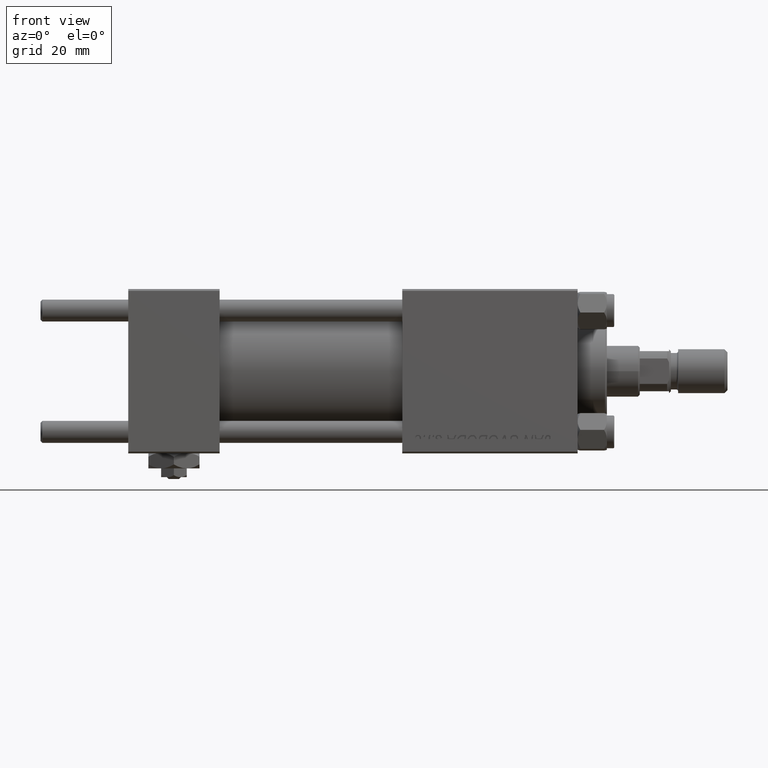
[diagram: clean part render]
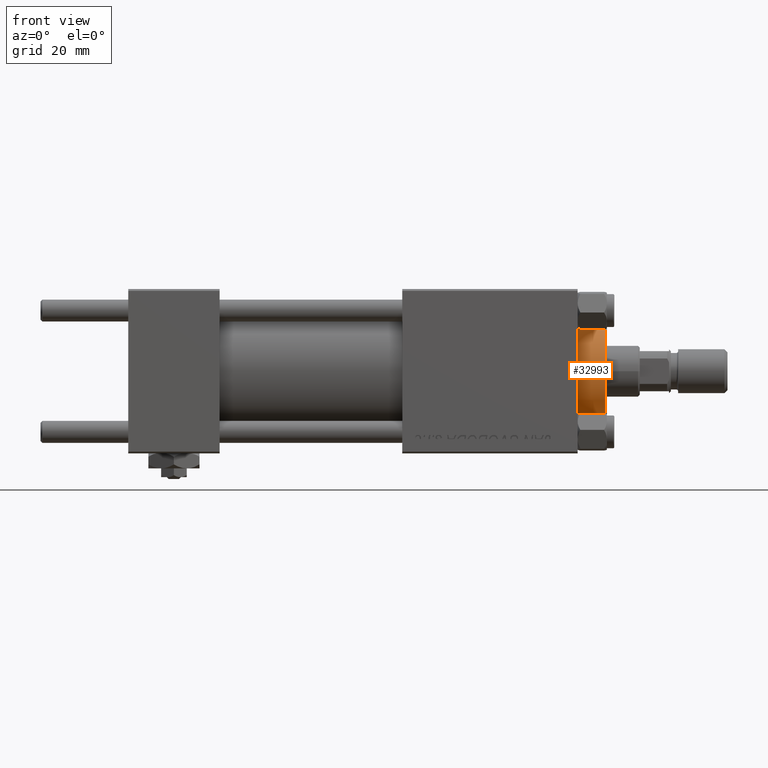
[diagram: same view with one face highlighted and labeled with its STEP entity id]
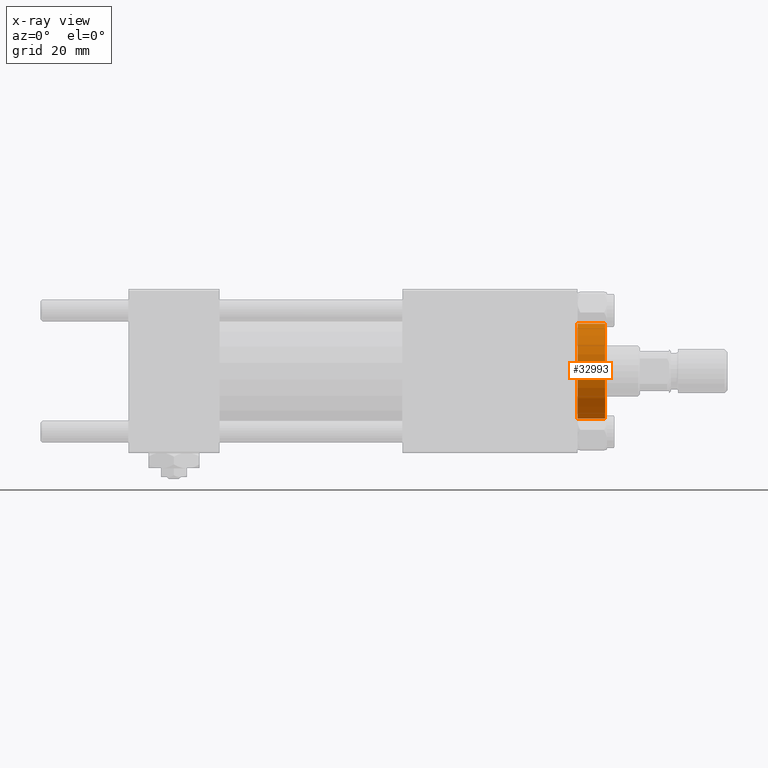
[diagram: x-ray of the same camera — body ghosted, the highlighted face saturated]
A machine part, front view. The second image highlights one B-rep face of the part: STEP entity #32993.
The next image is the same camera in x-ray: the body ghosted, the highlighted face saturated — about 0% of this face is hidden behind the body in this view.
In plain terms, the highlighted cylindrical surface (partial cylindrical patch) has radius 13 mm, axis along (-1, -0, 0).
Its self-contained STEP definition (entity closure, byte-faithful):
#883 = DIRECTION ( 'NONE',  ( 0.000000000000000000, 0.000000000000000000, 1.000000000000000000 ) ) ;
#1275 = VECTOR ( 'NONE', #42488, 1000.000000000000000 ) ;
#2880 = CARTESIAN_POINT ( 'NONE',  ( 13.00000000000000178, 1.592040838891559293E-15, 36.69999999999999574 ) ) ;
#3441 = CARTESIAN_POINT ( 'NONE',  ( -13.00000000000000178, 0.000000000000000000, 28.69999999999999929 ) ) ;
#4647 = CIRCLE ( 'NONE', #7161, 13.00000000000000178 ) ;
#5744 = CARTESIAN_POINT ( 'NONE',  ( 13.00000000000000178, 1.592040838891559293E-15, 28.69999999999999929 ) ) ;
#7161 = AXIS2_PLACEMENT_3D ( 'NONE', #37037, #883, #49966 ) ;
#7572 = CARTESIAN_POINT ( 'NONE',  ( 0.000000000000000000, 0.000000000000000000, 36.69999999999999574 ) ) ;
#13847 = VECTOR ( 'NONE', #17517, 1000.000000000000000 ) ;
#15831 = CARTESIAN_POINT ( 'NONE',  ( -13.00000000000000178, 0.000000000000000000, 36.20000000000000995 ) ) ;
#16024 = ORIENTED_EDGE ( 'NONE', *, *, #24260, .T. ) ;
#16163 = AXIS2_PLACEMENT_3D ( 'NONE', #35703, #24065, #39930 ) ;
#16205 = VERTEX_POINT ( 'NONE', #16940 ) ;
#16940 = CARTESIAN_POINT ( 'NONE',  ( 13.00000000000000178, 1.592040838891559293E-15, 36.20000000000000995 ) ) ;
#17517 = DIRECTION ( 'NONE',  ( -0.000000000000000000, -0.000000000000000000, -1.000000000000000000 ) ) ;
#17836 = EDGE_CURVE ( 'NONE', #21915, #18873, #4647, .T. ) ;
#18873 = VERTEX_POINT ( 'NONE', #5744 ) ;
#19950 = CYLINDRICAL_SURFACE ( 'NONE', #47744, 13.00000000000000178 ) ;
#21915 = VERTEX_POINT ( 'NONE', #3441 ) ;
#23648 = DIRECTION ( 'NONE',  ( -0.000000000000000000, -0.000000000000000000, -1.000000000000000000 ) ) ;
#24065 = DIRECTION ( 'NONE',  ( 0.000000000000000000, 0.000000000000000000, -1.000000000000000000 ) ) ;
#24260 = EDGE_CURVE ( 'NONE', #25492, #21915, #45777, .T. ) ;
#25096 = ORIENTED_EDGE ( 'NONE', *, *, #29283, .F. ) ;
#25492 = VERTEX_POINT ( 'NONE', #15831 ) ;
#28937 = FACE_OUTER_BOUND ( 'NONE', #44750, .T. ) ;
#29283 = EDGE_CURVE ( 'NONE', #16205, #18873, #38796, .T. ) ;
#32993 = ADVANCED_FACE ( 'NONE', ( #28937 ), #19950, .T. ) ;
#34159 = CARTESIAN_POINT ( 'NONE',  ( -13.00000000000000178, 0.000000000000000000, 36.69999999999999574 ) ) ;
#35703 = CARTESIAN_POINT ( 'NONE',  ( 0.000000000000000000, 0.000000000000000000, 36.20000000000000995 ) ) ;
#37037 = CARTESIAN_POINT ( 'NONE',  ( 0.000000000000000000, 0.000000000000000000, 28.69999999999999929 ) ) ;
#38368 = ORIENTED_EDGE ( 'NONE', *, *, #17836, .T. ) ;
#38796 = LINE ( 'NONE', #2880, #1275 ) ;
#39776 = DIRECTION ( 'NONE',  ( -1.000000000000000000, 0.000000000000000000, 0.000000000000000000 ) ) ;
#39930 = DIRECTION ( 'NONE',  ( 1.000000000000000000, 0.000000000000000000, 0.000000000000000000 ) ) ;
#42488 = DIRECTION ( 'NONE',  ( -0.000000000000000000, -0.000000000000000000, -1.000000000000000000 ) ) ;
#44750 = EDGE_LOOP ( 'NONE', ( #25096, #49933, #16024, #38368 ) ) ;
#45777 = LINE ( 'NONE', #34159, #13847 ) ;
#47131 = EDGE_CURVE ( 'NONE', #16205, #25492, #50748, .T. ) ;
#47744 = AXIS2_PLACEMENT_3D ( 'NONE', #7572, #23648, #39776 ) ;
#49933 = ORIENTED_EDGE ( 'NONE', *, *, #47131, .T. ) ;
#49966 = DIRECTION ( 'NONE',  ( 1.000000000000000000, 0.000000000000000000, 0.000000000000000000 ) ) ;
#50748 = CIRCLE ( 'NONE', #16163, 13.00000000000000178 ) ;